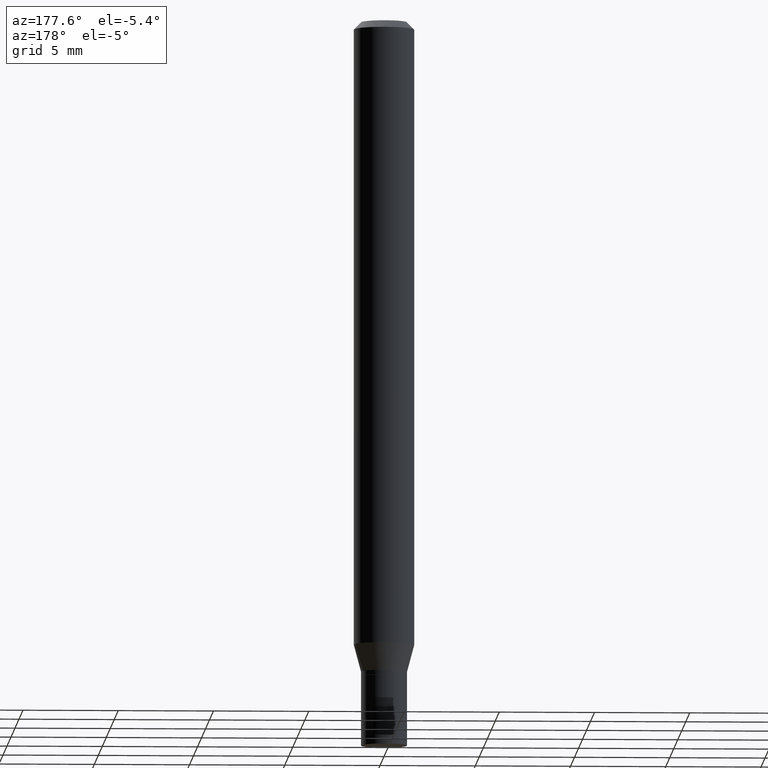
[diagram: clean part render]
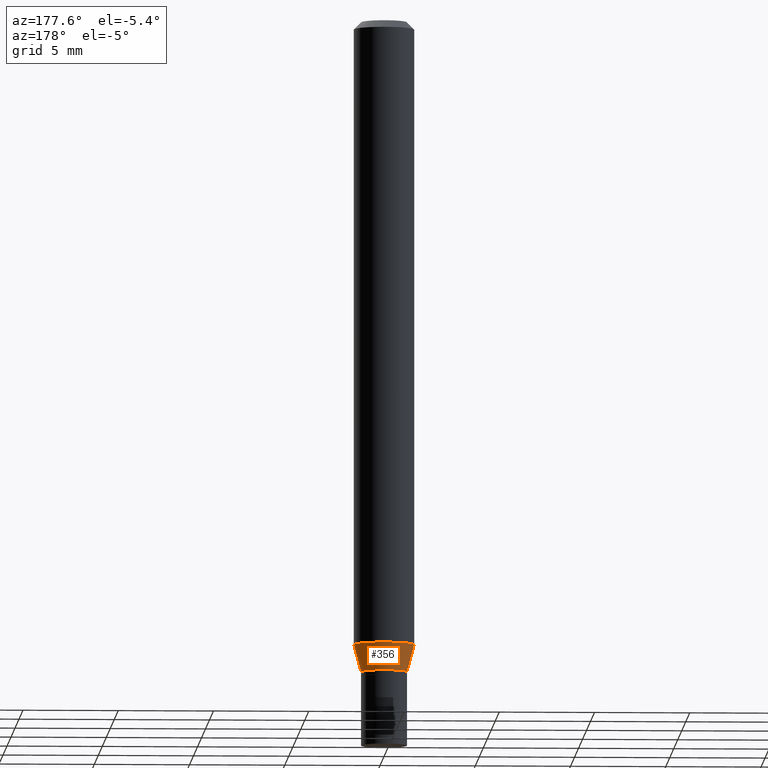
[diagram: same view with one face highlighted and labeled with its STEP entity id]
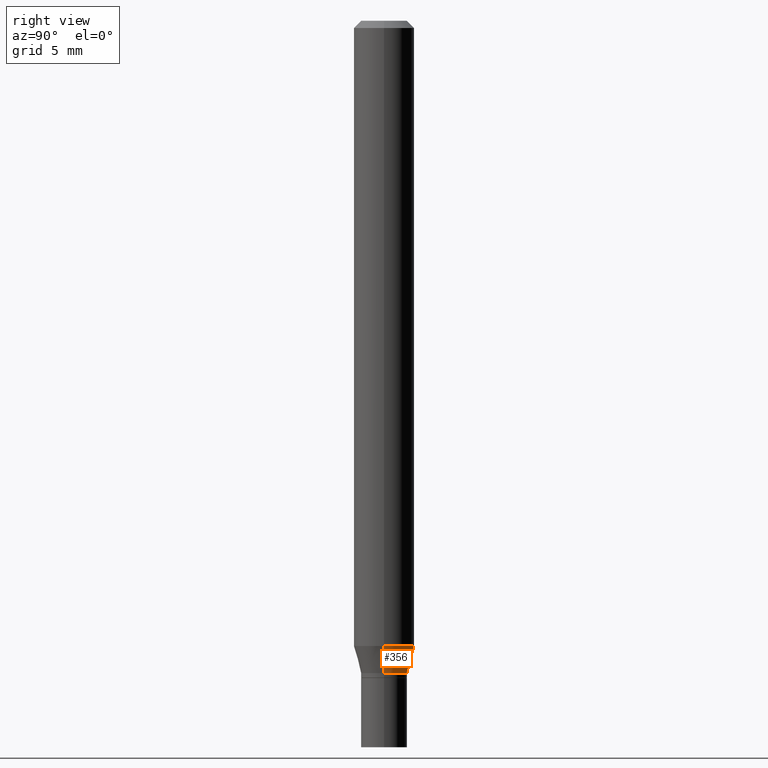
[diagram: same view with one face highlighted and labeled with its STEP entity id]
A machine part, auxiliary view. The second image highlights one B-rep face of the part: STEP entity #356.
A second angle (right view) of the same face is appended — the face is thin or edge-on in the first view.
In plain terms, the highlighted conical surface has half-angle 15 deg.
Its self-contained STEP definition (entity closure, byte-faithful):
#39 = LINE ( 'NONE', #174, #41 ) ;
#41 = VECTOR ( 'NONE', #397, 39.37007874015748143 ) ;
#42 = CARTESIAN_POINT ( 'NONE',  ( -0.04749999999999993117, -4.214498965626852086E-15, -1.347000000000000197 ) ) ;
#55 = CIRCLE ( 'NONE', #220, 0.04749999999999993117 ) ;
#57 = VERTEX_POINT ( 'NONE', #338 ) ;
#81 = DIRECTION ( 'NONE',  ( 1.000000000000000000, -6.982962677686271444E-15, 0.000000000000000000 ) ) ;
#85 = CARTESIAN_POINT ( 'NONE',  ( 3.294046481931379390E-29, -4.703025363421717574E-15, -1.347000000000000197 ) ) ;
#92 = ORIENTED_EDGE ( 'NONE', *, *, #164, .F. ) ;
#105 = CARTESIAN_POINT ( 'NONE',  ( 3.294046481931379390E-29, -4.703025363421717574E-15, -1.347000000000000197 ) ) ;
#115 = DIRECTION ( 'NONE',  ( 1.000000000000000000, -6.982962677686271444E-15, 0.000000000000000000 ) ) ;
#127 = VERTEX_POINT ( 'NONE', #42 ) ;
#129 = ORIENTED_EDGE ( 'NONE', *, *, #139, .T. ) ;
#139 = EDGE_CURVE ( 'NONE', #127, #178, #39, .T. ) ;
#162 = ORIENTED_EDGE ( 'NONE', *, *, #374, .T. ) ;
#164 = EDGE_CURVE ( 'NONE', #57, #178, #175, .T. ) ;
#174 = CARTESIAN_POINT ( 'NONE',  ( -0.04749999999999993117, -4.365517563935670870E-15, -1.347000000000000197 ) ) ;
#175 = CIRCLE ( 'NONE', #310, 0.06250000000000000000 ) ;
#178 = VERTEX_POINT ( 'NONE', #290 ) ;
#206 = DIRECTION ( 'NONE',  ( 1.000000000000000000, -6.982962677686262766E-15, 0.000000000000000000 ) ) ;
#213 = VERTEX_POINT ( 'NONE', #255 ) ;
#220 = AXIS2_PLACEMENT_3D ( 'NONE', #85, #259, #81 ) ;
#222 = CARTESIAN_POINT ( 'NONE',  ( 0.04749999999999993117, -5.034716090611815085E-15, -1.347000000000000197 ) ) ;
#241 = CONICAL_SURFACE ( 'NONE', #395, 0.04749999999999993117, 0.2617993877991482421 ) ;
#246 = DIRECTION ( 'NONE',  ( -2.445468806185136597E-29, 3.491481338843145583E-15, 1.000000000000000000 ) ) ;
#250 = VECTOR ( 'NONE', #251, 39.37007874015748143 ) ;
#251 = DIRECTION ( 'NONE',  ( 0.2588190451025196293, 1.565188264969636167E-15, 0.9659258262890685343 ) ) ;
#255 = CARTESIAN_POINT ( 'NONE',  ( 0.04749999999999993117, -5.034716090611815085E-15, -1.347000000000000197 ) ) ;
#257 = ORIENTED_EDGE ( 'NONE', *, *, #293, .F. ) ;
#259 = DIRECTION ( 'NONE',  ( -2.445468806185136597E-29, 3.491481338843145583E-15, 1.000000000000000000 ) ) ;
#290 = CARTESIAN_POINT ( 'NONE',  ( -0.06250000000000000000, -4.063480367318034881E-15, -1.291019237886466442 ) ) ;
#293 = EDGE_CURVE ( 'NONE', #213, #57, #342, .T. ) ;
#310 = AXIS2_PLACEMENT_3D ( 'NONE', #334, #246, #206 ) ;
#322 = EDGE_LOOP ( 'NONE', ( #162, #129, #92, #257 ) ) ;
#334 = CARTESIAN_POINT ( 'NONE',  ( 3.157147274436261961E-29, -4.507569577168097497E-15, -1.291019237886466442 ) ) ;
#338 = CARTESIAN_POINT ( 'NONE',  ( 0.06250000000000000000, -4.944004744523489167E-15, -1.291019237886466442 ) ) ;
#342 = LINE ( 'NONE', #222, #250 ) ;
#356 = ADVANCED_FACE ( 'NONE', ( #441 ), #241, .T. ) ;
#374 = EDGE_CURVE ( 'NONE', #213, #127, #55, .T. ) ;
#395 = AXIS2_PLACEMENT_3D ( 'NONE', #105, #401, #115 ) ;
#397 = DIRECTION ( 'NONE',  ( -0.2588190451025196293, 5.211531920934539209E-15, 0.9659258262890685343 ) ) ;
#401 = DIRECTION ( 'NONE',  ( -2.445468806185136597E-29, 3.491481338843145583E-15, 1.000000000000000000 ) ) ;
#441 = FACE_OUTER_BOUND ( 'NONE', #322, .T. ) ;